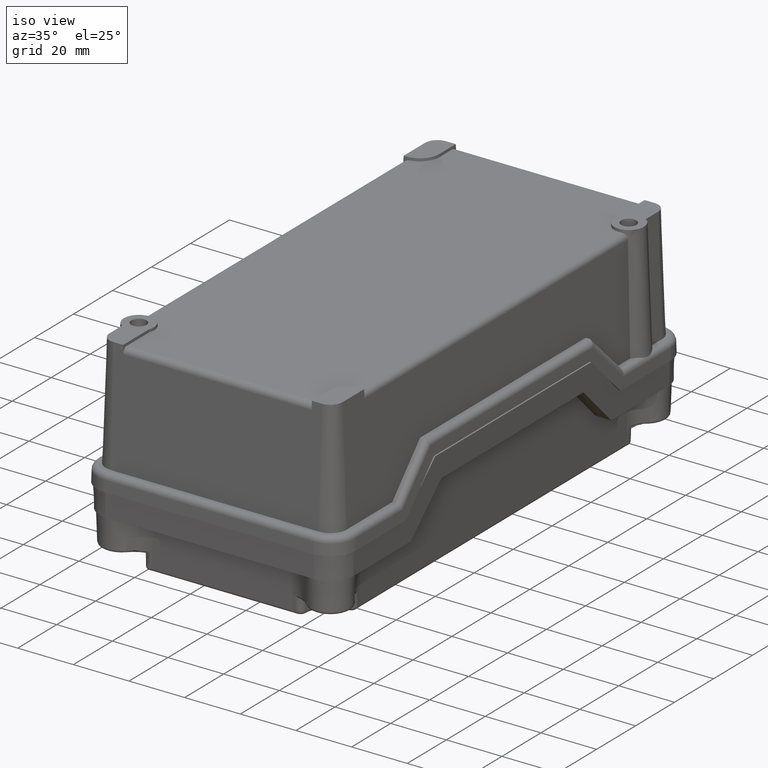
[diagram: clean part render]
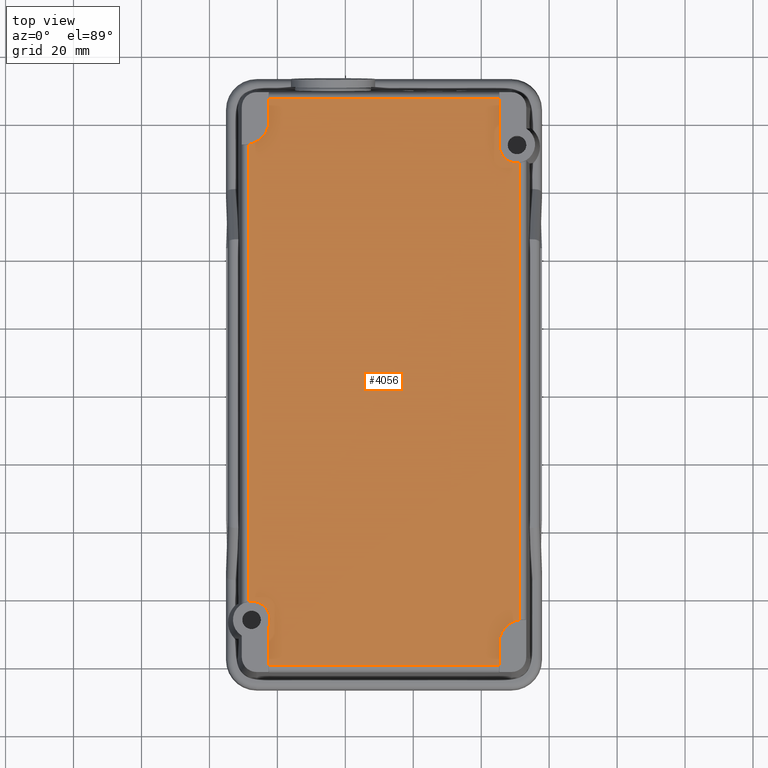
[diagram: tour spotlight — one face highlighted and labeled with its STEP entity id]
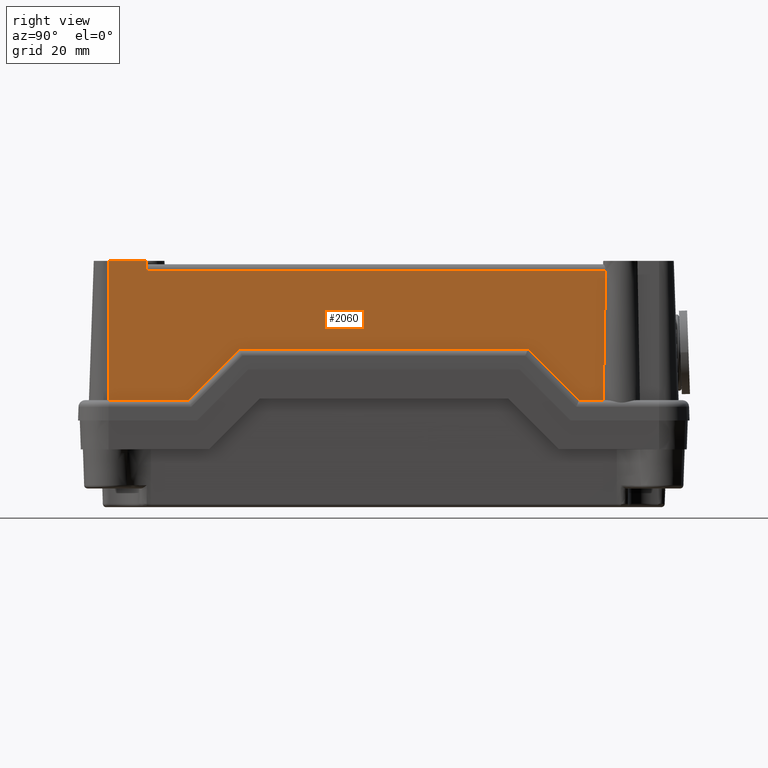
[diagram: tour spotlight — one face highlighted and labeled with its STEP entity id]
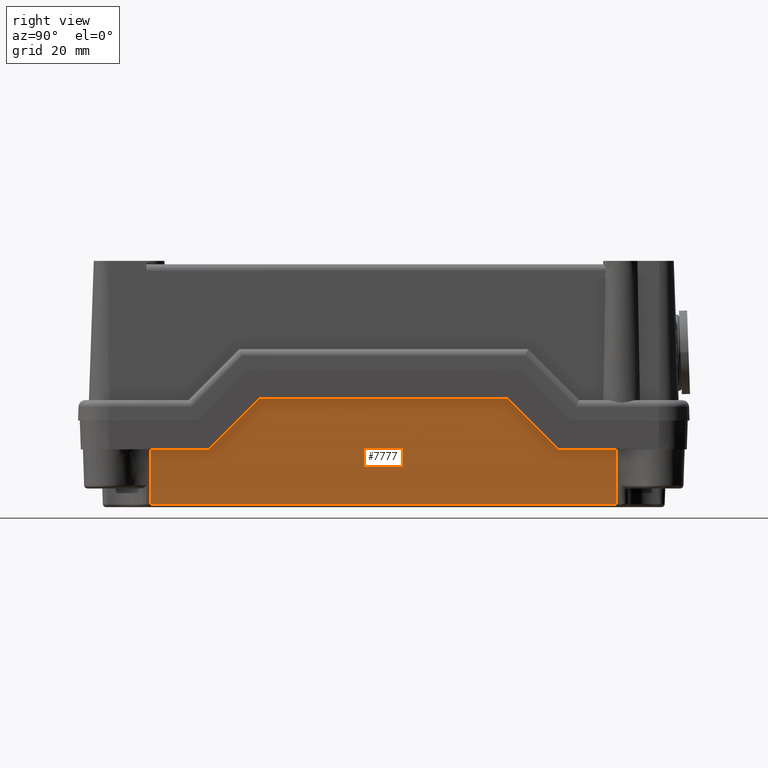
[diagram: tour spotlight — one face highlighted and labeled with its STEP entity id]
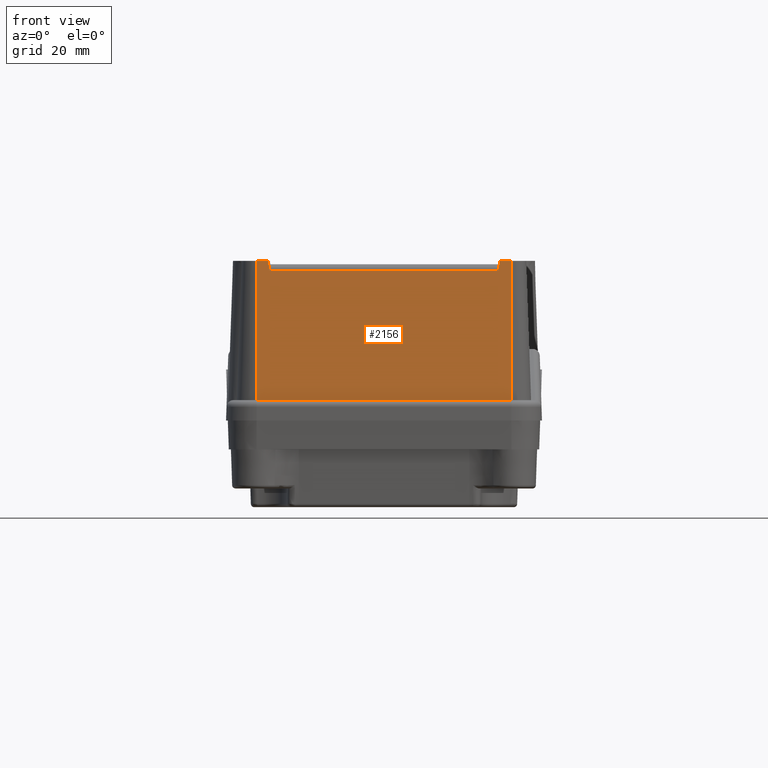
[diagram: tour spotlight — one face highlighted and labeled with its STEP entity id]
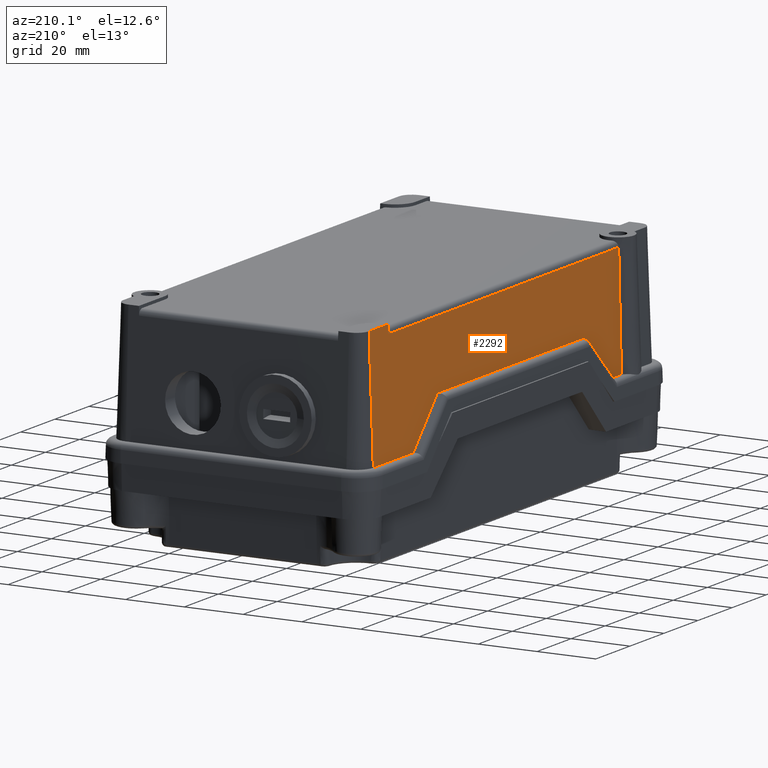
[diagram: tour spotlight — one face highlighted and labeled with its STEP entity id]
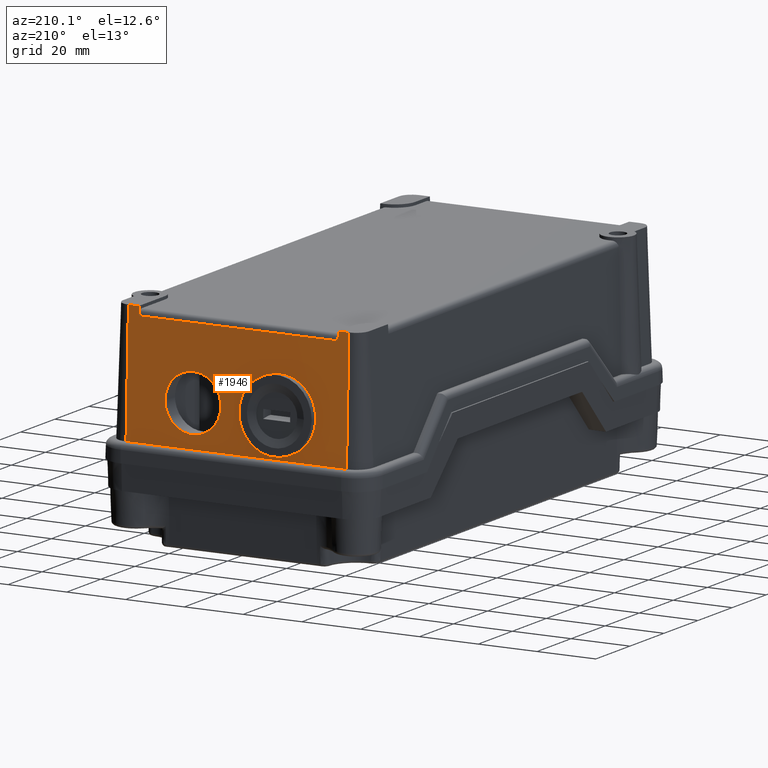
[diagram: tour spotlight — one face highlighted and labeled with its STEP entity id]
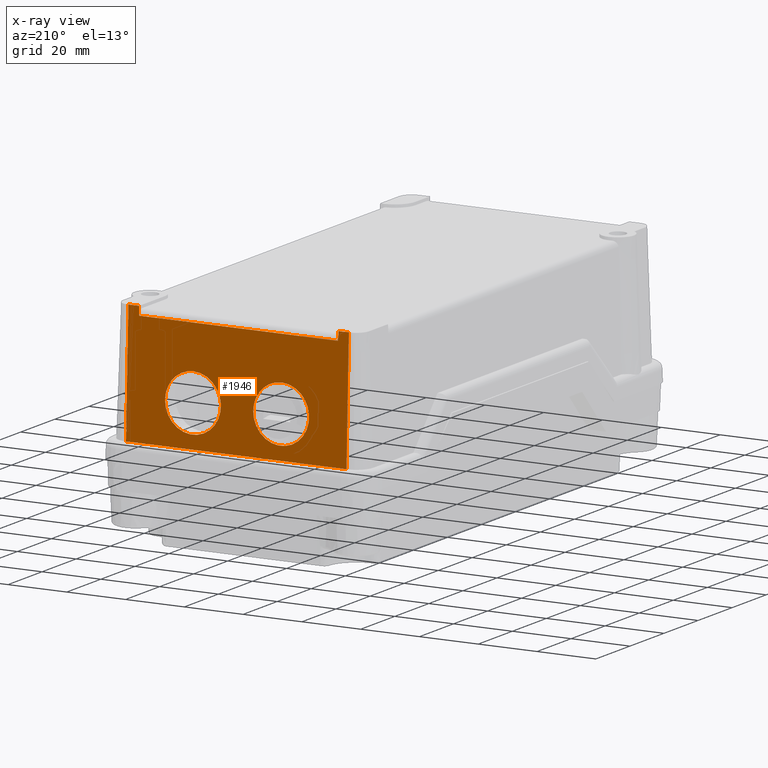
[diagram: x-ray of the same camera — body ghosted, this tour face saturated]
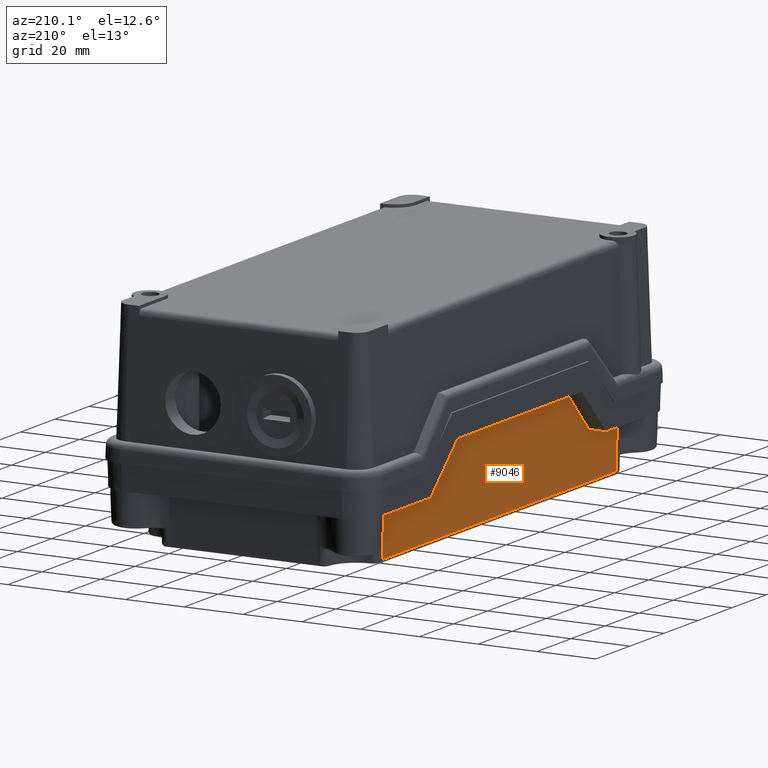
[diagram: tour spotlight — one face highlighted and labeled with its STEP entity id]
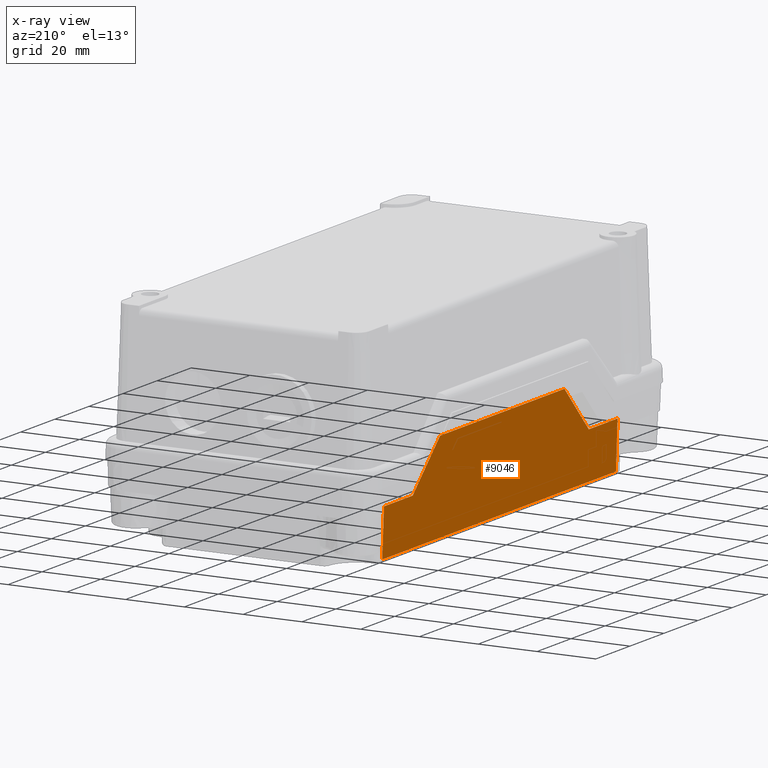
[diagram: x-ray of the same camera — body ghosted, this tour face saturated]
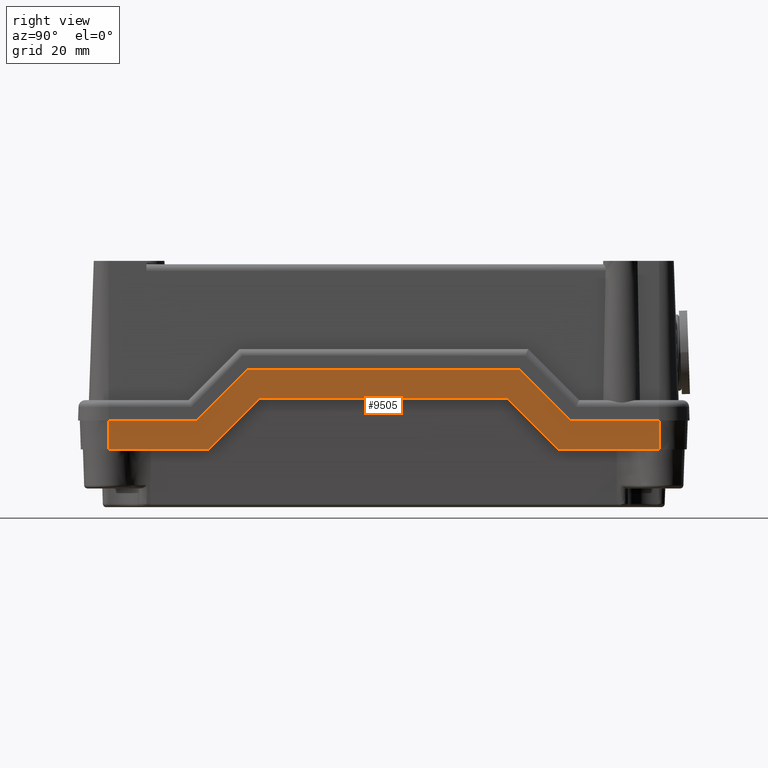
[diagram: tour spotlight — one face highlighted and labeled with its STEP entity id]
A machine part: a face-by-face anatomy tour. The part has 508 B-rep faces; the first image is the clean iso view, then the 8 largest visible faces are spotlighted one at a time (largest first), each with its STEP entity span.

Face 1 — top view, entity #4056. In plain terms, the highlighted planar face has unit normal (0, 0, 1).
Definition (entity closure, byte-faithful):
#1841=CARTESIAN_POINT('',(65.278736166263997,146.561854063201930,46.000000000000007));
#1842=VERTEX_POINT('',#1841);
#1860=CARTESIAN_POINT('',(-2.508553040495225,146.561854063201930,46.000000000000007));
#1861=VERTEX_POINT('',#1860);
#1869=CARTESIAN_POINT('',(-2.508553040495225,146.561854063201930,46.000000000000007));
#1870=DIRECTION('',(1.0,0.0,0.0));
#1871=VECTOR('',#1870,67.787289206759226);
#1872=LINE('',#1869,#1871);
#1873=EDGE_CURVE('',#1861,#1842,#1872,.T.);
#1952=CARTESIAN_POINT('',(71.347358616649842,127.703747191197450,46.000000000000007));
#1953=VERTEX_POINT('',#1952);
#1972=CARTESIAN_POINT('',(71.347358616649842,-6.856296005356006,46.000000000000007));
#1973=VERTEX_POINT('',#1972);
#1974=CARTESIAN_POINT('',(71.347358616649842,127.703747191197450,46.000000000000007));
#1975=DIRECTION('',(0.0,-1.0,0.0));
#1976=VECTOR('',#1975,134.560043196553470);
#1977=LINE('',#1974,#1976);
#1978=EDGE_CURVE('',#1953,#1973,#1977,.T.);
#2066=CARTESIAN_POINT('',(-2.508553040495214,-20.362680044328979,46.000000000000007));
#2067=VERTEX_POINT('',#2066);
#2085=CARTESIAN_POINT('',(65.278736166263982,-20.362680044328968,46.000000000000007));
#2086=VERTEX_POINT('',#2085);
#2094=CARTESIAN_POINT('',(65.278736166263982,-20.362680044328968,46.000000000000007));
#2095=DIRECTION('',(-1.0,0.0,0.0));
#2096=VECTOR('',#2095,67.787289206759198);
#2097=LINE('',#2094,#2096);
#2098=EDGE_CURVE('',#2086,#2067,#2097,.T.);
#2181=CARTESIAN_POINT('',(-8.577175490881073,-1.485245207637725,46.000000000000007));
#2182=VERTEX_POINT('',#2181);
#2202=CARTESIAN_POINT('',(-8.577175490881075,133.055470024228950,46.000000000000007));
#2203=VERTEX_POINT('',#2202);
#2204=CARTESIAN_POINT('',(-8.577175490881073,-1.485245207637725,46.000000000000007));
#2205=DIRECTION('',(0.0,1.0,0.0));
#2206=VECTOR('',#2205,134.540715231866670);
#2207=LINE('',#2204,#2206);
#2208=EDGE_CURVE('',#2182,#2203,#2207,.T.);
#3665=CARTESIAN_POINT('',(-2.508553040495223,-8.943727592724860,46.000000000000007));
#3666=VERTEX_POINT('',#3665);
#3681=CARTESIAN_POINT('',(-2.508553040495223,-8.943727592724860,46.000000000000007));
#3682=DIRECTION('',(0.0,-1.0,0.0));
#3683=VECTOR('',#3682,11.418952451604119);
#3684=LINE('',#3681,#3683);
#3685=EDGE_CURVE('',#3666,#2067,#3684,.T.);
#3743=CARTESIAN_POINT('',(65.278736166263954,132.880232871740700,46.000000000000007));
#3744=VERTEX_POINT('',#3743);
#3751=CARTESIAN_POINT('',(70.520797520908872,132.880232871740700,46.000000000000007));
#3752=DIRECTION('',(0.0,0.0,-1.0));
#3753=DIRECTION('',(-1.0,0.0,0.0));
#3754=AXIS2_PLACEMENT_3D('',#3751,#3752,#3753);
#3755=CIRCLE('',#3754,5.242061354644926);
#3756=EDGE_CURVE('',#1953,#3744,#3755,.T.);
#3781=CARTESIAN_POINT('',(65.278736166263954,132.880232871740700,46.000000000000007));
#3782=DIRECTION('',(0.0,1.0,0.0));
#3783=VECTOR('',#3782,13.681621191461232);
#3784=LINE('',#3781,#3783);
#3785=EDGE_CURVE('',#3744,#1842,#3784,.T.);
#3842=CARTESIAN_POINT('',(-2.508553040495221,139.993231612816060,46.000000000000007));
#3843=VERTEX_POINT('',#3842);
#3850=CARTESIAN_POINT('',(-2.508553040495225,146.561854063201930,46.000000000000007));
#3851=DIRECTION('',(0.0,-1.0,0.0));
#3852=VECTOR('',#3851,6.568622450385874);
#3853=LINE('',#3850,#3852);
#3854=EDGE_CURVE('',#1861,#3843,#3853,.T.);
#3882=CARTESIAN_POINT('',(-9.508553040495221,139.993231612816060,46.000000000000007));
#3883=DIRECTION('',(0.0,0.0,-1.0));
#3884=DIRECTION('',(0.0,-1.0,0.0));
#3885=AXIS2_PLACEMENT_3D('',#3882,#3883,#3884);
#3886=CIRCLE('',#3885,7.000000000000001);
#3887=EDGE_CURVE('',#3843,#2203,#3886,.T.);
#3943=CARTESIAN_POINT('',(65.278736166263997,-13.794057593943121,46.000000000000007));
#3944=VERTEX_POINT('',#3943);
#3951=CARTESIAN_POINT('',(65.278736166263982,-20.362680044328968,46.000000000000007));
#3952=DIRECTION('',(0.0,1.0,0.0));
#3953=VECTOR('',#3952,6.568622450385847);
#3954=LINE('',#3951,#3953);
#3955=EDGE_CURVE('',#2086,#3944,#3954,.T.);
#3983=CARTESIAN_POINT('',(72.278736166263997,-13.794057593943116,46.000000000000007));
#3984=DIRECTION('',(0.0,0.0,-1.0));
#3985=DIRECTION('',(0.0,1.0,0.0));
#3986=AXIS2_PLACEMENT_3D('',#3983,#3984,#3985);
#3987=CIRCLE('',#3986,7.000000000000001);
#3988=EDGE_CURVE('',#3944,#1973,#3987,.T.);
#4031=CARTESIAN_POINT('',(31.385091562884384,63.099587009436462,46.000000000000007));
#4032=DIRECTION('',(0.0,0.0,1.0));
#4033=DIRECTION('',(1.0,0.0,0.0));
#4034=AXIS2_PLACEMENT_3D('',#4031,#4032,#4033);
#4035=PLANE('',#4034);
#4036=ORIENTED_EDGE('',*,*,#1873,.F.);
#4037=ORIENTED_EDGE('',*,*,#3854,.T.);
#4038=ORIENTED_EDGE('',*,*,#3887,.T.);
#4039=ORIENTED_EDGE('',*,*,#2208,.F.);
#4040=CARTESIAN_POINT('',(-7.614908437115623,-6.900412990563529,46.000000000000007));
#4041=DIRECTION('',(0.0,0.0,-1.0));
#4042=DIRECTION('',(1.0,0.0,0.0));
#4043=AXIS2_PLACEMENT_3D('',#4040,#4041,#4042);
#4044=CIRCLE('',#4043,5.500000000000000);
#4045=EDGE_CURVE('',#2182,#3666,#4044,.T.);
#4046=ORIENTED_EDGE('',*,*,#4045,.T.);
#4047=ORIENTED_EDGE('',*,*,#3685,.T.);
#4048=ORIENTED_EDGE('',*,*,#2098,.F.);
#4049=ORIENTED_EDGE('',*,*,#3955,.T.);
#4050=ORIENTED_EDGE('',*,*,#3988,.T.);
#4051=ORIENTED_EDGE('',*,*,#1978,.F.);
#4052=ORIENTED_EDGE('',*,*,#3756,.T.);
#4053=ORIENTED_EDGE('',*,*,#3785,.T.);
#4054=EDGE_LOOP('',(#4036,#4037,#4038,#4039,#4046,#4047,#4048,#4049,#4050,#4051,#4052,#4053));
#4055=FACE_OUTER_BOUND('',#4054,.T.);
#4056=ADVANCED_FACE('',(#4055),#4035,.T.);

Face 2 — right view, entity #2060. In plain terms, the highlighted planar face has unit normal (0.9994, 0, 0.0349).
Definition (entity closure, byte-faithful):
#1676=CARTESIAN_POINT('',(74.675566945931934,5.598717935197834,5.999999999999992));
#1677=VERTEX_POINT('',#1676);
#1684=CARTESIAN_POINT('',(74.675566945933895,-17.900412990563535,6.000000000000014));
#1685=VERTEX_POINT('',#1684);
#1686=CARTESIAN_POINT('',(74.675566945933895,-17.900412990563535,6.000000000000014));
#1687=DIRECTION('',(0.0,1.0,0.0));
#1688=VECTOR('',#1687,23.499130925761367);
#1689=LINE('',#1686,#1688);
#1690=EDGE_CURVE('',#1685,#1677,#1689,.T.);
#1742=CARTESIAN_POINT('',(74.151211069077121,20.614305635197852,21.015587699999983));
#1743=VERTEX_POINT('',#1742);
#1750=CARTESIAN_POINT('',(74.675566945931934,5.598717935197834,5.999999999999992));
#1751=DIRECTION('',(-0.024685188407831,0.706891307583164,0.706891307583163));
#1752=VECTOR('',#1751,21.241720670378257);
#1753=LINE('',#1750,#1752);
#1754=EDGE_CURVE('',#1677,#1743,#1753,.T.);
#1768=CARTESIAN_POINT('',(74.151211069077192,105.584868383675030,21.015587699999983));
#1769=VERTEX_POINT('',#1768);
#1776=CARTESIAN_POINT('',(74.151211069077121,20.614305635197852,21.015587699999983));
#1777=DIRECTION('',(0.0,1.0,0.0));
#1778=VECTOR('',#1777,84.970562748477178);
#1779=LINE('',#1776,#1778);
#1780=EDGE_CURVE('',#1743,#1769,#1779,.T.);
#1792=CARTESIAN_POINT('',(74.675566945932019,120.600456083675030,5.999999999999992));
#1793=VERTEX_POINT('',#1792);
#1800=CARTESIAN_POINT('',(74.151211069077192,105.584868383675030,21.015587699999983));
#1801=DIRECTION('',(0.024685188407832,0.706891307583164,-0.706891307583163));
#1802=VECTOR('',#1801,21.241720670378246);
#1803=LINE('',#1800,#1802);
#1804=EDGE_CURVE('',#1769,#1793,#1803,.T.);
#1816=CARTESIAN_POINT('',(74.675566945933895,127.699763327977240,5.999999999999996));
#1817=VERTEX_POINT('',#1816);
#1825=CARTESIAN_POINT('',(74.675566945932019,120.600456083675030,5.999999999999992));
#1826=DIRECTION('',(2.642276E-013,1.0,6.255388E-016));
#1827=VECTOR('',#1826,7.099307244302210);
#1828=LINE('',#1825,#1827);
#1829=EDGE_CURVE('',#1793,#1817,#1828,.T.);
#1992=CARTESIAN_POINT('',(73.346140270688039,-6.726653489519068,44.069798993405001));
#1993=VERTEX_POINT('',#1992);
#2001=CARTESIAN_POINT('',(73.346140270688039,128.384910030896780,44.069798993405001));
#2002=VERTEX_POINT('',#2001);
#2003=CARTESIAN_POINT('',(73.346140270688039,-6.726653489519068,44.069798993405001));
#2004=DIRECTION('',(0.0,1.0,0.0));
#2005=VECTOR('',#2004,135.111563520415840);
#2006=LINE('',#2003,#2005);
#2007=EDGE_CURVE('',#1993,#2002,#2006,.T.);
#2019=CARTESIAN_POINT('',(73.278736166263997,-17.900412990563549,46.000000000000007));
#2020=DIRECTION('',(0.999390827019096,5.479243E-017,0.034899496702501));
#2021=DIRECTION('',(0.0,-1.0,0.0));
#2022=AXIS2_PLACEMENT_3D('',#2019,#2020,#2021);
#2023=PLANE('',#2022);
#2024=ORIENTED_EDGE('',*,*,#2007,.F.);
#2025=CARTESIAN_POINT('',(73.243815396772249,-6.828978363434865,47.0));
#2026=VERTEX_POINT('',#2025);
#2027=CARTESIAN_POINT('',(73.346140270688039,-6.726653489519068,44.069798993405001));
#2028=DIRECTION('',(-0.034878262742374,-0.034878262742377,0.998782765958718));
#2029=VECTOR('',#2028,2.933772093857004);
#2030=LINE('',#2027,#2029);
#2031=EDGE_CURVE('',#1993,#2026,#2030,.T.);
#2032=ORIENTED_EDGE('',*,*,#2031,.T.);
#2033=CARTESIAN_POINT('',(73.243815396772249,-17.900412990563549,47.0));
#2034=VERTEX_POINT('',#2033);
#2035=CARTESIAN_POINT('',(73.243815396772249,-6.828978363434865,47.0));
#2036=DIRECTION('',(0.0,-1.0,0.0));
#2037=VECTOR('',#2036,11.071434627128685);
#2038=LINE('',#2035,#2037);
#2039=EDGE_CURVE('',#2026,#2034,#2038,.T.);
#2040=ORIENTED_EDGE('',*,*,#2039,.T.);
#2041=CARTESIAN_POINT('',(74.675566945933895,-17.900412990563535,6.000000000000014));
#2042=DIRECTION('',(-0.034899496702501,-3.463951E-016,0.999390827019096));
#2043=VECTOR('',#2042,41.024991316251679);
#2044=LINE('',#2041,#2043);
#2045=EDGE_CURVE('',#1685,#2034,#2044,.T.);
#2046=ORIENTED_EDGE('',*,*,#2045,.F.);
#2047=ORIENTED_EDGE('',*,*,#1690,.T.);
#2048=ORIENTED_EDGE('',*,*,#1754,.T.);
#2049=ORIENTED_EDGE('',*,*,#1780,.T.);
#2050=ORIENTED_EDGE('',*,*,#1804,.T.);
#2051=ORIENTED_EDGE('',*,*,#1829,.T.);
#2052=CARTESIAN_POINT('',(74.675566945933909,127.699763327977240,6.000000000000005));
#2053=CARTESIAN_POINT('',(73.965826555859152,128.042336679441210,26.324305575295590));
#2054=CARTESIAN_POINT('',(73.346140270688039,128.384910030896780,44.069798993405001));
#2055=B_SPLINE_CURVE_WITH_KNOTS('',2,(#2052,#2053,#2054),.UNSPECIFIED.,.F.,.U.,(3,3),(0.0,3.795830122196213),.UNSPECIFIED.);
#2056=EDGE_CURVE('',#1817,#2002,#2055,.T.);
#2057=ORIENTED_EDGE('',*,*,#2056,.T.);
#2058=EDGE_LOOP('',(#2024,#2032,#2040,#2046,#2047,#2048,#2049,#2050,#2051,#2057));
#2059=FACE_OUTER_BOUND('',#2058,.T.);
#2060=ADVANCED_FACE('',(#2059),#2023,.T.);

Face 3 — right view, entity #7777. In plain terms, the highlighted planar face has unit normal (0.9994, -0, -0.0349).
Definition (entity closure, byte-faithful):
#5535=CARTESIAN_POINT('',(-1.896083390745202,82.261391683954855,23.499999999999986));
#5536=VERTEX_POINT('',#5535);
#5544=CARTESIAN_POINT('',(-1.336132361597512,82.261391683954855,39.534899496702501));
#5545=VERTEX_POINT('',#5544);
#5546=CARTESIAN_POINT('',(-1.336132361597512,82.261391683954855,39.534899496702501));
#5547=DIRECTION('',(-0.034899496702501,0.0,-0.999390827019096));
#5548=VECTOR('',#5547,16.044673478272912);
#5549=LINE('',#5546,#5548);
#5550=EDGE_CURVE('',#5545,#5536,#5549,.T.);
#5662=CARTESIAN_POINT('',(-1.336132361597469,-54.857181445621052,39.534899496702501));
#5663=VERTEX_POINT('',#5662);
#5664=CARTESIAN_POINT('',(-1.336132361597512,82.261391683954855,39.534899496702501));
#5665=DIRECTION('',(0.0,-1.0,0.0));
#5666=VECTOR('',#5665,137.118573129575910);
#5667=LINE('',#5664,#5666);
#5668=EDGE_CURVE('',#5545,#5663,#5667,.T.);
#7694=CARTESIAN_POINT('',(-1.896083390745133,-54.857181445621052,23.499999999999986));
#7695=VERTEX_POINT('',#7694);
#7696=CARTESIAN_POINT('',(-1.336132361597469,-54.857181445621052,39.534899496702501));
#7697=DIRECTION('',(-0.034899496702499,0.0,-0.999390827019096));
#7698=VECTOR('',#7697,16.044673478272909);
#7699=LINE('',#7696,#7698);
#7700=EDGE_CURVE('',#5663,#7695,#7699,.T.);
#7721=CARTESIAN_POINT('',(-1.302430309385491,82.261391683954855,40.500000000000000));
#7722=DIRECTION('',(-0.999390827019096,-2.993995E-016,0.034899496702501));
#7723=DIRECTION('',(0.0,1.0,0.0));
#7724=AXIS2_PLACEMENT_3D('',#7721,#7722,#7723);
#7725=PLANE('',#7724);
#7726=ORIENTED_EDGE('',*,*,#5668,.F.);
#7727=ORIENTED_EDGE('',*,*,#5550,.T.);
#7728=CARTESIAN_POINT('',(-1.896083390745261,65.387150288122399,23.499999999999979));
#7729=VERTEX_POINT('',#7728);
#7730=CARTESIAN_POINT('',(-1.896083390745202,82.261391683954855,23.499999999999986));
#7731=DIRECTION('',(0.0,-1.0,0.0));
#7732=VECTOR('',#7731,16.874241395832456);
#7733=LINE('',#7730,#7732);
#7734=EDGE_CURVE('',#5536,#7729,#7733,.T.);
#7735=ORIENTED_EDGE('',*,*,#7734,.T.);
#7736=CARTESIAN_POINT('',(-1.903391239965782,65.177625671171910,23.290730578767604));
#7737=VERTEX_POINT('',#7736);
#7738=CARTESIAN_POINT('',(-1.896083390745261,65.387150288122399,23.499999999999979));
#7739=DIRECTION('',(-0.024670150858004,-0.707322189149595,-0.706460688498141));
#7740=VECTOR('',#7739,0.296222315890299);
#7741=LINE('',#7738,#7740);
#7742=EDGE_CURVE('',#7729,#7737,#7741,.T.);
#7743=ORIENTED_EDGE('',*,*,#7742,.T.);
#7744=CARTESIAN_POINT('',(-2.427202782341995,50.177625671171924,8.290730578767594));
#7745=VERTEX_POINT('',#7744);
#7746=CARTESIAN_POINT('',(-1.903391239965782,65.177625671171910,23.290730578767604));
#7747=DIRECTION('',(-0.024685188407832,-0.706891307583163,-0.706891307583164));
#7748=VECTOR('',#7747,21.219669614108660);
#7749=LINE('',#7746,#7748);
#7750=EDGE_CURVE('',#7737,#7745,#7749,.T.);
#7751=ORIENTED_EDGE('',*,*,#7750,.T.);
#7752=CARTESIAN_POINT('',(-2.427202782341924,-22.773415432838199,8.290730578767576));
#7753=VERTEX_POINT('',#7752);
#7754=CARTESIAN_POINT('',(-2.427202782341995,50.177625671171924,8.290730578767594));
#7755=DIRECTION('',(0.0,-1.0,0.0));
#7756=VECTOR('',#7755,72.951041104010130);
#7757=LINE('',#7754,#7756);
#7758=EDGE_CURVE('',#7745,#7753,#7757,.T.);
#7759=ORIENTED_EDGE('',*,*,#7758,.T.);
#7760=CARTESIAN_POINT('',(-1.896083390745160,-37.982684854070662,23.499999999999979));
#7761=VERTEX_POINT('',#7760);
#7762=CARTESIAN_POINT('',(-2.427202782341924,-22.773415432838199,8.290730578767576));
#7763=DIRECTION('',(0.024685188407833,-0.706891307583165,0.706891307583162));
#7764=VECTOR('',#7763,21.515711479367862);
#7765=LINE('',#7762,#7764);
#7766=EDGE_CURVE('',#7753,#7761,#7765,.T.);
#7767=ORIENTED_EDGE('',*,*,#7766,.T.);
#7768=CARTESIAN_POINT('',(-1.896083390745160,-37.982684854070662,23.499999999999979));
#7769=DIRECTION('',(0.0,-1.0,0.0));
#7770=VECTOR('',#7769,16.874496591550390);
#7771=LINE('',#7768,#7770);
#7772=EDGE_CURVE('',#7761,#7695,#7771,.T.);
#7773=ORIENTED_EDGE('',*,*,#7772,.T.);
#7774=ORIENTED_EDGE('',*,*,#7700,.F.);
#7775=EDGE_LOOP('',(#7726,#7727,#7735,#7743,#7751,#7759,#7767,#7773,#7774));
#7776=FACE_OUTER_BOUND('',#7775,.T.);
#7777=ADVANCED_FACE('',(#7776),#7725,.T.);

Face 4 — front view, entity #2156. In plain terms, the highlighted planar face has unit normal (0, -0.9994, 0.0349).
Definition (entity closure, byte-faithful):
#1692=CARTESIAN_POINT('',(68.885091562884426,-23.690888373613028,6.000000000000014));
#1693=VERTEX_POINT('',#1692);
#1701=CARTESIAN_POINT('',(-6.114908437115658,-23.690888373613028,6.000000000000014));
#1702=VERTEX_POINT('',#1701);
#1703=CARTESIAN_POINT('',(-6.114908437115658,-23.690888373613028,6.000000000000014));
#1704=DIRECTION('',(1.0,0.0,0.0));
#1705=VECTOR('',#1704,75.000000000000085);
#1706=LINE('',#1703,#1705);
#1707=EDGE_CURVE('',#1702,#1693,#1706,.T.);
#2068=CARTESIAN_POINT('',(-2.441148936071174,-22.361461698367158,44.069798993405001));
#2069=VERTEX_POINT('',#2068);
#2077=CARTESIAN_POINT('',(65.211332061839954,-22.361461698367158,44.069798993405001));
#2078=VERTEX_POINT('',#2077);
#2079=CARTESIAN_POINT('',(-2.441148936071174,-22.361461698367158,44.069798993405001));
#2080=DIRECTION('',(1.0,0.0,0.0));
#2081=VECTOR('',#2080,67.652480997911127);
#2082=LINE('',#2079,#2081);
#2083=EDGE_CURVE('',#2069,#2078,#2082,.T.);
#2103=CARTESIAN_POINT('',(-6.114908437115658,-22.294057593943116,46.000000000000007));
#2104=DIRECTION('',(0.0,-0.999390827019096,0.034899496702501));
#2105=DIRECTION('',(-1.0,0.0,0.0));
#2106=AXIS2_PLACEMENT_3D('',#2103,#2104,#2105);
#2107=PLANE('',#2106);
#2108=CARTESIAN_POINT('',(65.313656935755745,-22.259136824451371,47.0));
#2109=VERTEX_POINT('',#2108);
#2110=CARTESIAN_POINT('',(65.211332061839954,-22.361461698367158,44.069798993405001));
#2111=DIRECTION('',(0.034878262742374,0.034878262742373,0.998782765958718));
#2112=VECTOR('',#2111,2.933772093857004);
#2113=LINE('',#2110,#2112);
#2114=EDGE_CURVE('',#2078,#2109,#2113,.T.);
#2115=ORIENTED_EDGE('',*,*,#2114,.F.);
#2116=ORIENTED_EDGE('',*,*,#2083,.F.);
#2117=CARTESIAN_POINT('',(-2.543473809986963,-22.259136824451371,47.0));
#2118=VERTEX_POINT('',#2117);
#2119=CARTESIAN_POINT('',(-2.441148936071174,-22.361461698367158,44.069798993405001));
#2120=DIRECTION('',(-0.034878262742374,0.034878262742373,0.998782765958718));
#2121=VECTOR('',#2120,2.933772093857004);
#2122=LINE('',#2119,#2121);
#2123=EDGE_CURVE('',#2069,#2118,#2122,.T.);
#2124=ORIENTED_EDGE('',*,*,#2123,.T.);
#2125=CARTESIAN_POINT('',(-6.114908437115658,-22.259136824451375,47.0));
#2126=VERTEX_POINT('',#2125);
#2127=CARTESIAN_POINT('',(-2.543473809986963,-22.259136824451371,47.0));
#2128=DIRECTION('',(-1.0,0.0,0.0));
#2129=VECTOR('',#2128,3.571434627128695);
#2130=LINE('',#2127,#2129);
#2131=EDGE_CURVE('',#2118,#2126,#2130,.T.);
#2132=ORIENTED_EDGE('',*,*,#2131,.T.);
#2133=CARTESIAN_POINT('',(-6.114908437115658,-23.690888373613028,6.000000000000014));
#2134=DIRECTION('',(0.0,0.034899496702501,0.999390827019096));
#2135=VECTOR('',#2134,41.024991316251679);
#2136=LINE('',#2133,#2135);
#2137=EDGE_CURVE('',#1702,#2126,#2136,.T.);
#2138=ORIENTED_EDGE('',*,*,#2137,.F.);
#2139=ORIENTED_EDGE('',*,*,#1707,.T.);
#2140=CARTESIAN_POINT('',(68.885091562884426,-22.259136824451371,47.0));
#2141=VERTEX_POINT('',#2140);
#2142=CARTESIAN_POINT('',(68.885091562884426,-23.690888373613028,6.000000000000014));
#2143=DIRECTION('',(0.0,0.034899496702501,0.999390827019096));
#2144=VECTOR('',#2143,41.024991316251679);
#2145=LINE('',#2142,#2144);
#2146=EDGE_CURVE('',#1693,#2141,#2145,.T.);
#2147=ORIENTED_EDGE('',*,*,#2146,.T.);
#2148=CARTESIAN_POINT('',(68.885091562884426,-22.259136824451371,47.0));
#2149=DIRECTION('',(-1.0,0.0,0.0));
#2150=VECTOR('',#2149,3.571434627128681);
#2151=LINE('',#2148,#2150);
#2152=EDGE_CURVE('',#2141,#2109,#2151,.T.);
#2153=ORIENTED_EDGE('',*,*,#2152,.T.);
#2154=EDGE_LOOP('',(#2115,#2116,#2124,#2132,#2138,#2139,#2147,#2153));
#2155=FACE_OUTER_BOUND('',#2154,.T.);
#2156=ADVANCED_FACE('',(#2155),#2107,.T.);

Face 5 — auxiliary view, entity #2292. In plain terms, the highlighted planar face has unit normal (-0.9994, -0, 0.0349).
Definition (entity closure, byte-faithful):
#1638=CARTESIAN_POINT('',(-11.905383820165129,-1.500589309104250,5.999999999999996));
#1639=VERTEX_POINT('',#1638);
#1647=CARTESIAN_POINT('',(-11.905383820165131,5.598717935197870,5.999999999999992));
#1648=VERTEX_POINT('',#1647);
#1649=CARTESIAN_POINT('',(-11.905383820165131,5.598717935197870,5.999999999999992));
#1650=DIRECTION('',(0.0,-1.0,0.0));
#1651=VECTOR('',#1650,7.099307244302120);
#1652=LINE('',#1649,#1651);
#1653=EDGE_CURVE('',#1648,#1639,#1652,.T.);
#2164=CARTESIAN_POINT('',(-10.575957144919268,132.925827508391990,44.069798993405001));
#2165=VERTEX_POINT('',#2164);
#2173=CARTESIAN_POINT('',(-10.575957144919265,-2.185736012023816,44.069798993405001));
#2174=VERTEX_POINT('',#2173);
#2175=CARTESIAN_POINT('',(-10.575957144919268,132.925827508391990,44.069798993405001));
#2176=DIRECTION('',(0.0,-1.0,0.0));
#2177=VECTOR('',#2176,135.111563520415810);
#2178=LINE('',#2175,#2177);
#2179=EDGE_CURVE('',#2165,#2174,#2178,.T.);
#2223=CARTESIAN_POINT('',(-10.508553040495226,144.099587009436500,46.000000000000007));
#2224=DIRECTION('',(-0.999390827019096,-2.739621E-017,0.034899496702501));
#2225=DIRECTION('',(0.0,1.0,0.0));
#2226=AXIS2_PLACEMENT_3D('',#2223,#2224,#2225);
#2227=PLANE('',#2226);
#2228=ORIENTED_EDGE('',*,*,#2179,.F.);
#2229=CARTESIAN_POINT('',(-10.473632271003478,133.028152382307810,47.000000000000014));
#2230=VERTEX_POINT('',#2229);
#2231=CARTESIAN_POINT('',(-10.575957144919268,132.925827508391990,44.069798993405001));
#2232=DIRECTION('',(0.034878262742374,0.034878262742384,0.998782765958718));
#2233=VECTOR('',#2232,2.933772093857019);
#2234=LINE('',#2231,#2233);
#2235=EDGE_CURVE('',#2165,#2230,#2234,.T.);
#2236=ORIENTED_EDGE('',*,*,#2235,.T.);
#2237=CARTESIAN_POINT('',(-10.473632271003472,144.099587009436500,47.000000000000014));
#2238=VERTEX_POINT('',#2237);
#2239=CARTESIAN_POINT('',(-10.473632271003478,133.028152382307810,47.000000000000014));
#2240=DIRECTION('',(0.0,1.0,0.0));
#2241=VECTOR('',#2240,11.071434627128696);
#2242=LINE('',#2239,#2241);
#2243=EDGE_CURVE('',#2230,#2238,#2242,.T.);
#2244=ORIENTED_EDGE('',*,*,#2243,.T.);
#2245=CARTESIAN_POINT('',(-11.905383820165135,144.099587009436500,6.000000000000014));
#2246=VERTEX_POINT('',#2245);
#2247=CARTESIAN_POINT('',(-10.473632271003472,144.099587009436500,47.000000000000014));
#2248=DIRECTION('',(-0.034899496702501,0.0,-0.999390827019096));
#2249=VECTOR('',#2248,41.024991316251693);
#2250=LINE('',#2247,#2249);
#2251=EDGE_CURVE('',#2238,#2246,#2250,.T.);
#2252=ORIENTED_EDGE('',*,*,#2251,.T.);
#2253=CARTESIAN_POINT('',(-11.905383820165135,120.600456083675060,5.999999999999992));
#2254=VERTEX_POINT('',#2253);
#2255=CARTESIAN_POINT('',(-11.905383820165135,144.099587009436500,6.000000000000014));
#2256=DIRECTION('',(0.0,-1.0,0.0));
#2257=VECTOR('',#2256,23.499130925761449);
#2258=LINE('',#2255,#2257);
#2259=EDGE_CURVE('',#2246,#2254,#2258,.T.);
#2260=ORIENTED_EDGE('',*,*,#2259,.T.);
#2261=CARTESIAN_POINT('',(-11.381027943310311,105.584868383675090,21.015587699999983));
#2262=VERTEX_POINT('',#2261);
#2263=CARTESIAN_POINT('',(-11.905383820165135,120.600456083675060,5.999999999999992));
#2264=DIRECTION('',(0.024685188407832,-0.706891307583163,0.706891307583164));
#2265=VECTOR('',#2264,21.241720670378225);
#2266=LINE('',#2263,#2265);
#2267=EDGE_CURVE('',#2254,#2262,#2266,.T.);
#2268=ORIENTED_EDGE('',*,*,#2267,.T.);
#2269=CARTESIAN_POINT('',(-11.381027943310309,20.614305635197887,21.015587699999983));
#2270=VERTEX_POINT('',#2269);
#2271=CARTESIAN_POINT('',(-11.381027943310311,105.584868383675090,21.015587699999983));
#2272=DIRECTION('',(0.0,-1.0,0.0));
#2273=VECTOR('',#2272,84.970562748477192);
#2274=LINE('',#2271,#2273);
#2275=EDGE_CURVE('',#2262,#2270,#2274,.T.);
#2276=ORIENTED_EDGE('',*,*,#2275,.T.);
#2277=CARTESIAN_POINT('',(-11.381027943310309,20.614305635197887,21.015587699999983));
#2278=DIRECTION('',(-0.024685188407832,-0.706891307583164,-0.706891307583163));
#2279=VECTOR('',#2278,21.241720670378257);
#2280=LINE('',#2277,#2279);
#2281=EDGE_CURVE('',#2270,#1648,#2280,.T.);
#2282=ORIENTED_EDGE('',*,*,#2281,.T.);
#2283=ORIENTED_EDGE('',*,*,#1653,.T.);
#2284=CARTESIAN_POINT('',(-11.905383820165129,-1.500589309104250,6.000000000000005));
#2285=CARTESIAN_POINT('',(-11.195643430090536,-1.843162660568192,26.324305575291447));
#2286=CARTESIAN_POINT('',(-10.575957144919265,-2.185736012023816,44.069798993405001));
#2287=B_SPLINE_CURVE_WITH_KNOTS('',2,(#2284,#2285,#2286),.UNSPECIFIED.,.F.,.U.,(3,3),(0.0,3.795830122196260),.UNSPECIFIED.);
#2288=EDGE_CURVE('',#1639,#2174,#2287,.T.);
#2289=ORIENTED_EDGE('',*,*,#2288,.T.);
#2290=EDGE_LOOP('',(#2228,#2236,#2244,#2252,#2260,#2268,#2276,#2282,#2283,#2289));
#2291=FACE_OUTER_BOUND('',#2290,.T.);
#2292=ADVANCED_FACE('',(#2291),#2227,.T.);

Face 6 — auxiliary view, entity #1946. An x-ray twin of the same camera follows (body ghosted, this face saturated) — the face is partly hidden behind the body. In plain terms, the highlighted planar face has unit normal (0, 0.9994, 0.0349).
Definition (entity closure, byte-faithful):
#123=CARTESIAN_POINT('',(25.885091562884348,149.401469438650960,19.991471578267365));
#124=VERTEX_POINT('',#123);
#125=CARTESIAN_POINT('',(16.385091562884348,149.401469438650960,19.991471578267369));
#126=DIRECTION('',(0.0,-0.999390827019096,-0.034899496702501));
#127=DIRECTION('',(-1.0,0.0,0.0));
#128=AXIS2_PLACEMENT_3D('',#125,#126,#127);
#129=CIRCLE('',#128,9.500000000000000);
#130=EDGE_CURVE('',#124,#124,#129,.T.);
#151=CARTESIAN_POINT('',(55.885091562884348,149.401469438650960,19.991471578267355));
#152=VERTEX_POINT('',#151);
#153=CARTESIAN_POINT('',(46.385091562884348,149.401469438650960,19.991471578267358));
#154=DIRECTION('',(0.0,-0.999390827019096,-0.034899496702501));
#155=DIRECTION('',(-1.0,0.0,0.0));
#156=AXIS2_PLACEMENT_3D('',#153,#154,#155);
#157=CIRCLE('',#156,9.500000000000000);
#158=EDGE_CURVE('',#152,#152,#157,.T.);
#1843=CARTESIAN_POINT('',(65.211332061839954,148.560635717240100,44.069798993405001));
#1844=VERTEX_POINT('',#1843);
#1852=CARTESIAN_POINT('',(-2.441148936071187,148.560635717240100,44.069798993405001));
#1853=VERTEX_POINT('',#1852);
#1854=CARTESIAN_POINT('',(65.211332061839954,148.560635717240100,44.069798993405001));
#1855=DIRECTION('',(-1.0,0.0,0.0));
#1856=VECTOR('',#1855,67.652480997911141);
#1857=LINE('',#1854,#1856);
#1858=EDGE_CURVE('',#1844,#1853,#1857,.T.);
#1878=CARTESIAN_POINT('',(68.885091562884412,148.493231612816060,46.000000000000007));
#1879=DIRECTION('',(0.0,0.999390827019096,0.034899496702501));
#1880=DIRECTION('',(1.0,0.0,0.0));
#1881=AXIS2_PLACEMENT_3D('',#1878,#1879,#1880);
#1882=PLANE('',#1881);
#1883=CARTESIAN_POINT('',(-2.543473809986969,148.458310843324340,47.000000000000014));
#1884=VERTEX_POINT('',#1883);
#1885=CARTESIAN_POINT('',(-2.441148936071187,148.560635717240100,44.069798993405001));
#1886=DIRECTION('',(-0.034878262742371,-0.034878262742365,0.998782765958719));
#1887=VECTOR('',#1886,2.933772093857017);
#1888=LINE('',#1885,#1887);
#1889=EDGE_CURVE('',#1853,#1884,#1888,.T.);
#1890=ORIENTED_EDGE('',*,*,#1889,.F.);
#1891=ORIENTED_EDGE('',*,*,#1858,.F.);
#1892=CARTESIAN_POINT('',(65.313656935755745,148.458310843324310,47.0));
#1893=VERTEX_POINT('',#1892);
#1894=CARTESIAN_POINT('',(65.211332061839954,148.560635717240100,44.069798993405001));
#1895=DIRECTION('',(0.034878262742374,-0.034878262742374,0.998782765958718));
#1896=VECTOR('',#1895,2.933772093857004);
#1897=LINE('',#1894,#1896);
#1898=EDGE_CURVE('',#1844,#1893,#1897,.T.);
#1899=ORIENTED_EDGE('',*,*,#1898,.T.);
#1900=CARTESIAN_POINT('',(68.885091562884412,148.458310843324310,47.0));
#1901=VERTEX_POINT('',#1900);
#1902=CARTESIAN_POINT('',(65.313656935755745,148.458310843324310,47.0));
#1903=DIRECTION('',(1.0,0.0,0.0));
#1904=VECTOR('',#1903,3.571434627128667);
#1905=LINE('',#1902,#1904);
#1906=EDGE_CURVE('',#1893,#1901,#1905,.T.);
#1907=ORIENTED_EDGE('',*,*,#1906,.T.);
#1908=CARTESIAN_POINT('',(68.885091562884412,149.890062392485990,6.000000000000014));
#1909=VERTEX_POINT('',#1908);
#1910=CARTESIAN_POINT('',(68.885091562884412,149.890062392485990,6.000000000000014));
#1911=DIRECTION('',(0.0,-0.034899496702501,0.999390827019096));
#1912=VECTOR('',#1911,41.024991316251679);
#1913=LINE('',#1910,#1912);
#1914=EDGE_CURVE('',#1909,#1901,#1913,.T.);
#1915=ORIENTED_EDGE('',*,*,#1914,.F.);
#1916=CARTESIAN_POINT('',(-6.114908437115655,149.890062392485990,6.000000000000014));
#1917=VERTEX_POINT('',#1916);
#1918=CARTESIAN_POINT('',(68.885091562884412,149.890062392485990,6.000000000000014));
#1919=DIRECTION('',(-1.0,0.0,0.0));
#1920=VECTOR('',#1919,75.000000000000071);
#1921=LINE('',#1918,#1920);
#1922=EDGE_CURVE('',#1909,#1917,#1921,.T.);
#1923=ORIENTED_EDGE('',*,*,#1922,.T.);
#1924=CARTESIAN_POINT('',(-6.114908437115654,148.458310843324310,47.000000000000014));
#1925=VERTEX_POINT('',#1924);
#1926=CARTESIAN_POINT('',(-6.114908437115655,149.890062392485990,6.000000000000014));
#1927=DIRECTION('',(2.164969E-017,-0.034899496702501,0.999390827019096));
#1928=VECTOR('',#1927,41.024991316251693);
#1929=LINE('',#1926,#1928);
#1930=EDGE_CURVE('',#1917,#1925,#1929,.T.);
#1931=ORIENTED_EDGE('',*,*,#1930,.T.);
#1932=CARTESIAN_POINT('',(-6.114908437115654,148.458310843324310,47.000000000000014));
#1933=DIRECTION('',(1.0,0.0,0.0));
#1934=VECTOR('',#1933,3.571434627128685);
#1935=LINE('',#1932,#1934);
#1936=EDGE_CURVE('',#1925,#1884,#1935,.T.);
#1937=ORIENTED_EDGE('',*,*,#1936,.T.);
#1938=EDGE_LOOP('',(#1890,#1891,#1899,#1907,#1915,#1923,#1931,#1937));
#1939=FACE_OUTER_BOUND('',#1938,.T.);
#1940=ORIENTED_EDGE('',*,*,#130,.T.);
#1941=EDGE_LOOP('',(#1940));
#1942=FACE_BOUND('',#1941,.T.);
#1943=ORIENTED_EDGE('',*,*,#158,.T.);
#1944=EDGE_LOOP('',(#1943));
#1945=FACE_BOUND('',#1944,.T.);
#1946=ADVANCED_FACE('',(#1939,#1942,#1945),#1882,.T.);

Face 7 — auxiliary view, entity #9046. An x-ray twin of the same camera follows (body ghosted, this face saturated) — the face is partly hidden behind the body. In plain terms, the highlighted planar face has unit normal (-0.9994, 0, -0.0349).
Definition (entity closure, byte-faithful):
#5000=CARTESIAN_POINT('',(76.902689413995034,82.261391683954855,39.534899496702501));
#5001=VERTEX_POINT('',#5000);
#5009=CARTESIAN_POINT('',(77.462640443142689,82.261391683954855,23.499999999999986));
#5010=VERTEX_POINT('',#5009);
#5011=CARTESIAN_POINT('',(76.902689413995034,82.261391683954855,39.534899496702501));
#5012=DIRECTION('',(0.034899496702499,0.0,-0.999390827019096));
#5013=VECTOR('',#5012,16.044673478272909);
#5014=LINE('',#5011,#5013);
#5015=EDGE_CURVE('',#5001,#5010,#5014,.T.);
#7209=CARTESIAN_POINT('',(76.902689413995006,-54.857181445620959,39.534899496702501));
#7210=VERTEX_POINT('',#7209);
#7251=CARTESIAN_POINT('',(76.902689413995006,-54.857181445620959,39.534899496702501));
#7252=DIRECTION('',(0.0,1.0,0.0));
#7253=VECTOR('',#7252,137.118573129575820);
#7254=LINE('',#7251,#7253);
#7255=EDGE_CURVE('',#7210,#5001,#7254,.T.);
#7274=CARTESIAN_POINT('',(77.462640443142703,-54.857181445620959,23.499999999999986));
#7275=VERTEX_POINT('',#7274);
#7283=CARTESIAN_POINT('',(76.902689413995006,-54.857181445620959,39.534899496702501));
#7284=DIRECTION('',(0.034899496702501,0.0,-0.999390827019096));
#7285=VECTOR('',#7284,16.044673478272912);
#7286=LINE('',#7283,#7285);
#7287=EDGE_CURVE('',#7210,#7275,#7286,.T.);
#8808=CARTESIAN_POINT('',(77.462640443142703,-37.982684854070634,23.499999999999979));
#8809=VERTEX_POINT('',#8808);
#8816=CARTESIAN_POINT('',(77.462640443142703,-54.857181445620959,23.499999999999986));
#8817=DIRECTION('',(0.0,1.0,0.0));
#8818=VECTOR('',#8817,16.874496591550326);
#8819=LINE('',#8816,#8818);
#8820=EDGE_CURVE('',#7275,#8809,#8819,.T.);
#8859=CARTESIAN_POINT('',(77.993759834739450,-22.773415432838178,8.290730578767576));
#8860=VERTEX_POINT('',#8859);
#8867=CARTESIAN_POINT('',(77.993759834739450,-22.773415432838178,8.290730578767576));
#8868=DIRECTION('',(-0.024685188407832,-0.706891307583165,0.706891307583163));
#8869=VECTOR('',#8868,21.515711479367855);
#8870=LINE('',#8867,#8869);
#8871=EDGE_CURVE('',#8860,#8809,#8870,.T.);
#8881=CARTESIAN_POINT('',(77.993759834739478,50.177625671171953,8.290730578767594));
#8882=VERTEX_POINT('',#8881);
#8883=CARTESIAN_POINT('',(77.993759834739478,50.177625671171953,8.290730578767594));
#8884=DIRECTION('',(0.0,-1.0,0.0));
#8885=VECTOR('',#8884,72.951041104010130);
#8886=LINE('',#8883,#8885);
#8887=EDGE_CURVE('',#8882,#8860,#8886,.T.);
#8912=CARTESIAN_POINT('',(77.469948292363256,65.177625671171938,23.290730578767604));
#8913=VERTEX_POINT('',#8912);
#8914=CARTESIAN_POINT('',(77.469948292363256,65.177625671171938,23.290730578767604));
#8915=DIRECTION('',(0.024685188407832,-0.706891307583163,-0.706891307583164));
#8916=VECTOR('',#8915,21.219669614108660);
#8917=LINE('',#8914,#8916);
#8918=EDGE_CURVE('',#8913,#8882,#8917,.T.);
#8943=CARTESIAN_POINT('',(77.462640443142746,65.387150288122413,23.499999999999979));
#8944=VERTEX_POINT('',#8943);
#8951=CARTESIAN_POINT('',(77.462640443142746,65.387150288122413,23.499999999999979));
#8952=DIRECTION('',(0.024670150857967,-0.707322189149572,-0.706460688498166));
#8953=VECTOR('',#8952,0.296222315890288);
#8954=LINE('',#8951,#8953);
#8955=EDGE_CURVE('',#8944,#8913,#8954,.T.);
#8980=CARTESIAN_POINT('',(77.462640443142746,65.387150288122413,23.499999999999979));
#8981=DIRECTION('',(0.0,1.0,0.0));
#8982=VECTOR('',#8981,16.874241395832442);
#8983=LINE('',#8980,#8982);
#8984=EDGE_CURVE('',#8944,#5010,#8983,.T.);
#9030=CARTESIAN_POINT('',(76.868987361782985,-54.857181445620959,40.500000000000000));
#9031=DIRECTION('',(0.999390827019096,-2.589401E-016,0.034899496702501));
#9032=DIRECTION('',(0.0,-1.0,0.0));
#9033=AXIS2_PLACEMENT_3D('',#9030,#9031,#9032);
#9034=PLANE('',#9033);
#9035=ORIENTED_EDGE('',*,*,#7255,.F.);
#9036=ORIENTED_EDGE('',*,*,#7287,.T.);
#9037=ORIENTED_EDGE('',*,*,#8820,.T.);
#9038=ORIENTED_EDGE('',*,*,#8871,.F.);
#9039=ORIENTED_EDGE('',*,*,#8887,.F.);
#9040=ORIENTED_EDGE('',*,*,#8918,.F.);
#9041=ORIENTED_EDGE('',*,*,#8955,.F.);
#9042=ORIENTED_EDGE('',*,*,#8984,.T.);
#9043=ORIENTED_EDGE('',*,*,#5015,.F.);
#9044=EDGE_LOOP('',(#9035,#9036,#9037,#9038,#9039,#9040,#9041,#9042,#9043));
#9045=FACE_OUTER_BOUND('',#9044,.T.);
#9046=ADVANCED_FACE('',(#9045),#9034,.T.);

Face 8 — right view, entity #9505. In plain terms, the highlighted planar face has unit normal (0.9994, -0, -0.0349).
Definition (entity closure, byte-faithful):
#8671=CARTESIAN_POINT('',(-8.419894933121457,50.177625671171924,8.499999999999970));
#8672=VERTEX_POINT('',#8671);
#8679=CARTESIAN_POINT('',(-8.419894933121404,-22.773415432838206,8.499999999999952));
#8680=VERTEX_POINT('',#8679);
#8681=CARTESIAN_POINT('',(-8.419894933121404,-22.773415432838206,8.499999999999952));
#8682=DIRECTION('',(0.0,1.0,0.0));
#8683=VECTOR('',#8682,72.951041104010130);
#8684=LINE('',#8681,#8683);
#8685=EDGE_CURVE('',#8680,#8672,#8684,.T.);
#8702=CARTESIAN_POINT('',(-7.896083390745234,65.177625671171910,23.499999999999979));
#8703=VERTEX_POINT('',#8702);
#8710=CARTESIAN_POINT('',(-8.419894933121457,50.177625671171924,8.499999999999970));
#8711=DIRECTION('',(0.024685188407832,0.706891307583163,0.706891307583164));
#8712=VECTOR('',#8711,21.219669614108660);
#8713=LINE('',#8710,#8712);
#8714=EDGE_CURVE('',#8672,#8703,#8713,.T.);
#8741=CARTESIAN_POINT('',(-7.896083390745197,-37.773415432838291,23.499999999999979));
#8742=VERTEX_POINT('',#8741);
#8751=CARTESIAN_POINT('',(-7.896083390745197,-37.773415432838291,23.499999999999979));
#8752=DIRECTION('',(-0.024685188407831,0.706891307583165,-0.706891307583162));
#8753=VECTOR('',#8752,21.219669614108742);
#8754=LINE('',#8751,#8753);
#8755=EDGE_CURVE('',#8742,#8680,#8754,.T.);
#8766=CARTESIAN_POINT('',(-7.896083390745168,-67.297894880833070,23.499999999999979));
#8767=VERTEX_POINT('',#8766);
#8768=CARTESIAN_POINT('',(-7.896083390745168,-67.297894880833070,23.499999999999979));
#8769=DIRECTION('',(0.0,1.0,0.0));
#8770=VECTOR('',#8769,29.524479447994779);
#8771=LINE('',#8768,#8770);
#8772=EDGE_CURVE('',#8767,#8742,#8771,.T.);
#9012=CARTESIAN_POINT('',(-7.896083390745201,94.702105119166902,23.499999999999979));
#9013=VERTEX_POINT('',#9012);
#9021=CARTESIAN_POINT('',(-7.896083390745234,65.177625671171910,23.499999999999979));
#9022=DIRECTION('',(0.0,1.0,0.0));
#9023=VECTOR('',#9022,29.524479447994992);
#9024=LINE('',#9021,#9023);
#9025=EDGE_CURVE('',#8703,#9013,#9024,.T.);
#9052=CARTESIAN_POINT('',(-8.192909931425021,-41.297894880833155,15.000000000000002));
#9053=VERTEX_POINT('',#9052);
#9054=CARTESIAN_POINT('',(-8.192909931425023,-67.297894880833070,15.0));
#9055=VERTEX_POINT('',#9054);
#9056=CARTESIAN_POINT('',(-8.192909931425021,-41.297894880833155,15.000000000000002));
#9057=DIRECTION('',(0.0,-1.0,0.0));
#9058=VECTOR('',#9057,25.999999999999915);
#9059=LINE('',#9056,#9058);
#9060=EDGE_CURVE('',#9053,#9055,#9059,.T.);
#9214=CARTESIAN_POINT('',(-8.192909931425039,68.702105119166816,15.000000000000004));
#9215=VERTEX_POINT('',#9214);
#9216=CARTESIAN_POINT('',(-8.716721473801258,53.702105119166831,2.157040E-015));
#9217=VERTEX_POINT('',#9216);
#9218=CARTESIAN_POINT('',(-8.192909931425039,68.702105119166816,15.000000000000004));
#9219=DIRECTION('',(-0.024685188407832,-0.706891307583163,-0.706891307583164));
#9220=VECTOR('',#9219,21.219669614108657);
#9221=LINE('',#9218,#9220);
#9222=EDGE_CURVE('',#9215,#9217,#9221,.T.);
#9285=CARTESIAN_POINT('',(-8.716721473801247,-26.297894880833148,-7.640134E-015));
#9286=VERTEX_POINT('',#9285);
#9287=CARTESIAN_POINT('',(-8.716721473801247,-26.297894880833148,-7.640134E-015));
#9288=DIRECTION('',(0.024685188407832,-0.706891307583164,0.706891307583164));
#9289=VECTOR('',#9288,21.219669614108675);
#9290=LINE('',#9287,#9289);
#9291=EDGE_CURVE('',#9286,#9053,#9290,.T.);
#9316=CARTESIAN_POINT('',(-8.192909931425053,94.702105119166902,15.000000000000009));
#9317=VERTEX_POINT('',#9316);
#9318=CARTESIAN_POINT('',(-8.192909931425053,94.702105119166902,15.000000000000009));
#9319=DIRECTION('',(0.0,-1.0,0.0));
#9320=VECTOR('',#9319,26.000000000000085);
#9321=LINE('',#9318,#9320);
#9322=EDGE_CURVE('',#9317,#9215,#9321,.T.);
#9471=CARTESIAN_POINT('',(-8.716721473801240,-67.297894880833070,0.0));
#9472=DIRECTION('',(-0.999390827019096,-1.301320E-016,0.034899496702501));
#9473=DIRECTION('',(0.0,-1.0,0.0));
#9474=AXIS2_PLACEMENT_3D('',#9471,#9472,#9473);
#9475=PLANE('',#9474);
#9476=ORIENTED_EDGE('',*,*,#8714,.T.);
#9477=ORIENTED_EDGE('',*,*,#9025,.T.);
#9478=CARTESIAN_POINT('',(-8.192909931425053,94.702105119166902,15.000000000000009));
#9479=DIRECTION('',(0.034899496702501,0.0,0.999390827019096));
#9480=VECTOR('',#9479,8.505181126539954);
#9481=LINE('',#9478,#9480);
#9482=EDGE_CURVE('',#9317,#9013,#9481,.T.);
#9483=ORIENTED_EDGE('',*,*,#9482,.F.);
#9484=ORIENTED_EDGE('',*,*,#9322,.T.);
#9485=ORIENTED_EDGE('',*,*,#9222,.T.);
#9486=CARTESIAN_POINT('',(-8.716721473801258,53.702105119166831,2.157040E-015));
#9487=DIRECTION('',(0.0,-1.0,0.0));
#9488=VECTOR('',#9487,79.999999999999972);
#9489=LINE('',#9486,#9488);
#9490=EDGE_CURVE('',#9217,#9286,#9489,.T.);
#9491=ORIENTED_EDGE('',*,*,#9490,.T.);
#9492=ORIENTED_EDGE('',*,*,#9291,.T.);
#9493=ORIENTED_EDGE('',*,*,#9060,.T.);
#9494=CARTESIAN_POINT('',(-8.192909931425023,-67.297894880833070,15.0));
#9495=DIRECTION('',(0.034899496702501,0.0,0.999390827019096));
#9496=VECTOR('',#9495,8.505181126539965);
#9497=LINE('',#9494,#9496);
#9498=EDGE_CURVE('',#9055,#8767,#9497,.T.);
#9499=ORIENTED_EDGE('',*,*,#9498,.T.);
#9500=ORIENTED_EDGE('',*,*,#8772,.T.);
#9501=ORIENTED_EDGE('',*,*,#8755,.T.);
#9502=ORIENTED_EDGE('',*,*,#8685,.T.);
#9503=EDGE_LOOP('',(#9476,#9477,#9483,#9484,#9485,#9491,#9492,#9493,#9499,#9500,#9501,#9502));
#9504=FACE_OUTER_BOUND('',#9503,.T.);
#9505=ADVANCED_FACE('',(#9504),#9475,.T.);